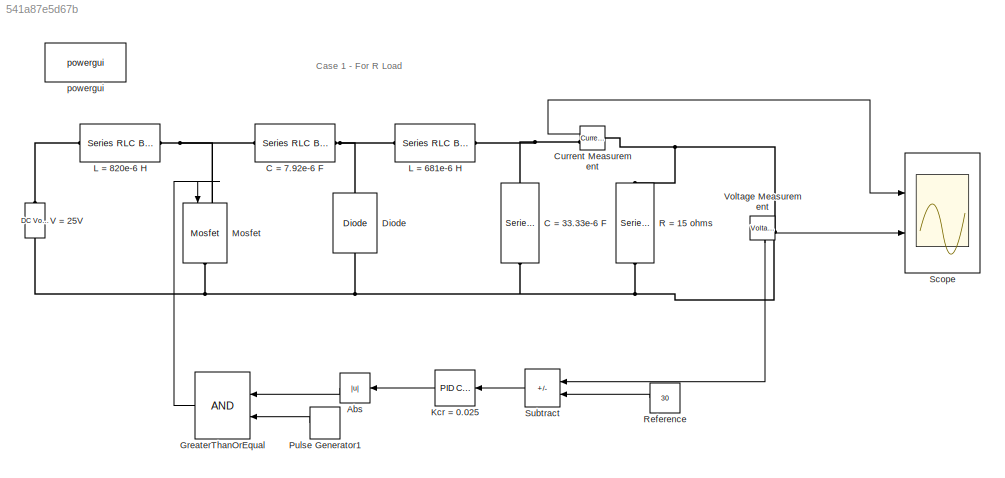
MODEL slx_541a87e5d67b
KIND model
CONFIG AbsTol = auto
CONFIG EnableMultiTasking = off
CONFIG FixedStep = auto
CONFIG MaxStep = auto
CONFIG MinStep = auto
CONFIG RelTol = 1e-3
CONFIG SampleTimeConstraint = Unconstrained
CONFIG Solver = VariableStepAuto
CONFIG SolverName = VariableStepAuto
CONFIG StartTime = 0.0
CONFIG StopTime = 0.05
BLOCK [Abs] Abs
  SaturateOnIntegerOverflow = off
BLOCK [Reference] C = 33.33e-6 F  REF=powerlib/Elements/Series RLC Branch
  NameLocation = right
  Ports = [0, 0, 0, 0, 0, 1, 1]
  SourceBlock = powerlib/Elements/Series RLC Branch
  SourceProductBaseCode = PS
  SourceType = Series RLC Branch
BLOCK [Reference] C = 7.92e-6 F  REF=powerlib/Elements/Series RLC Branch
  Ports = [0, 0, 0, 0, 0, 1, 1]
  SourceBlock = powerlib/Elements/Series RLC Branch
  SourceProductBaseCode = PS
  SourceType = Series RLC Branch
BLOCK [Reference] Current Measurement  REF=powerlib/Measurements/Current Measurement
  Ports = [0, 1, 0, 0, 0, 1, 1]
  SourceBlock = powerlib/Measurements/Current Measurement
  SourceProductBaseCode = PS
  SourceType = Current Measurement
  UserDataPersistent = on
BLOCK [Reference] Diode  REF=powerlib/Power
Electronics/Diode
  NameLocation = left
  Ports = [0, 0, 0, 0, 0, 1, 1]
  SourceBlock = powerlib/Power\nElectronics/Diode
  SourceProductBaseCode = PS
  SourceType = Diode
BLOCK [RelationalOperator] GreaterThanOrEqual
  InputSameDT = off
  OutDataTypeStr = boolean
  Ports = [2, 1]
  RndMeth = Simplest
BLOCK [Reference] Kcr = 0.025  REF=simulink/Continuous/PID Controller
  Ports = [1, 1]
  SourceBlock = simulink/Continuous/PID Controller
  SourceProductBaseCode = SL
  SourceType = PID 1dof
BLOCK [Reference] L = 681e-6 H  REF=powerlib/Elements/Series RLC Branch
  Ports = [0, 0, 0, 0, 0, 1, 1]
  SourceBlock = powerlib/Elements/Series RLC Branch
  SourceProductBaseCode = PS
  SourceType = Series RLC Branch
BLOCK [Reference] L = 820e-6 H  REF=powerlib/Elements/Series RLC Branch
  Ports = [0, 0, 0, 0, 0, 1, 1]
  SourceBlock = powerlib/Elements/Series RLC Branch
  SourceProductBaseCode = PS
  SourceType = Series RLC Branch
BLOCK [Reference] Mosfet  REF=powerlib/Power
Electronics/Mosfet
  NameLocation = left
  Ports = [1, 0, 0, 0, 0, 1, 1]
  SourceBlock = powerlib/Power\nElectronics/Mosfet
  SourceProductBaseCode = PS
  SourceType = Mosfet
BLOCK [DiscretePulseGenerator] Pulse Generator1
  Period = 1/100000
  Ports = [0, 1]
  PulseType = Time based
  PulseWidth = 30
BLOCK [Reference] R = 15 ohms  REF=powerlib/Elements/Series RLC Branch
  NameLocation = right
  Ports = [0, 0, 0, 0, 0, 1, 1]
  SourceBlock = powerlib/Elements/Series RLC Branch
  SourceProductBaseCode = PS
  SourceType = Series RLC Branch
BLOCK [Constant] Reference
  Value = 30
BLOCK [Scope] Scope
  Floating = off
  NumInputPorts = 2
  Ports = [2]
  ScopeSpecificationString = Simulink.scopes.TimeScopeBlockCfg('CurrentConfiguration', extmgr.ConfigurationSet(extmgr.Configuration('Core','General UI',true,'FigureColor',[1 1 1]),extmgr.Configuration('Core','Source UI',true),extmgr.Configuration('Sources','WiredSimulink',true),extmgr.Configuration('Visuals','Time Domain',true,'SerializedDisplays',{struct('MinYLimReal','-0.74387','MaxYLimReal','6.6948','YLabelReal','Load Curr...<+2304ch>
BLOCK [Sum] Subtract
  IconShape = rectangular
  Inputs = +-
  Ports = [2, 1]
BLOCK [Reference] V = 25V  REF=powerlib/Electrical
Sources/DC Voltage Source
  NameLocation = right
  Ports = [0, 0, 0, 0, 0, 1, 1]
  SourceBlock = powerlib/Electrical\nSources/DC Voltage Source
  SourceProductBaseCode = PS
  SourceType = DC Voltage Source
BLOCK [Reference] Voltage Measurement  REF=powerlib/Measurements/Voltage Measurement
  Ports = [0, 1, 0, 0, 0, 2]
  SourceBlock = powerlib/Measurements/Voltage Measurement
  SourceProductBaseCode = PS
  SourceType = Voltage Measurement
  UserDataPersistent = on
BLOCK [Reference] powergui  REF=powerlib/powergui
  Ports = []
  Priority = 1
  SourceBlock = powerlib/powergui
  SourceProductBaseCode = PS
  SourceType = PSB option menu block
ANNOTATION (root): Case 1 - For R Load
LINE Abs:1 -> GreaterThanOrEqual:1
LINE Current Measurement:1 -> Scope:1
LINE GreaterThanOrEqual:1 -> Mosfet:1
LINE Kcr = 0.025:1 -> Abs:1
LINE Pulse Generator1:1 -> GreaterThanOrEqual:2
LINE Reference:1 -> Subtract:2
LINE Subtract:1 -> Kcr = 0.025:1
NET Voltage Measurement:1 -> Scope:2, Subtract:1
PNET net1: C = 33.33e-6 F:LConn1 -- Diode:RConn1 -- Mosfet:RConn1 -- R = 15 ohms:LConn1 -- V = 25V:LConn1 -- Voltage Measurement:LConn1
PNET net2: C = 33.33e-6 F:RConn1 -- Current Measurement:RConn1 -- L = 681e-6 H:RConn1
PNET net3: C = 7.92e-6 F:LConn1 -- L = 820e-6 H:RConn1 -- Mosfet:LConn1
PNET net4: C = 7.92e-6 F:RConn1 -- Diode:LConn1 -- L = 681e-6 H:LConn1
PNET net5: Current Measurement:LConn1 -- R = 15 ohms:RConn1 -- Voltage Measurement:LConn2
PLINE L = 820e-6 H:LConn1 -- V = 25V:RConn1
note: NET lines group one-source signal fan-out (src -> all destinations, sorted); 1:1 wires keep LINE; PNET lines group multi-terminal physical nets as a canonical sorted terminal list (undirected conserving connections); 2-terminal nets keep the pairwise PLINE form
